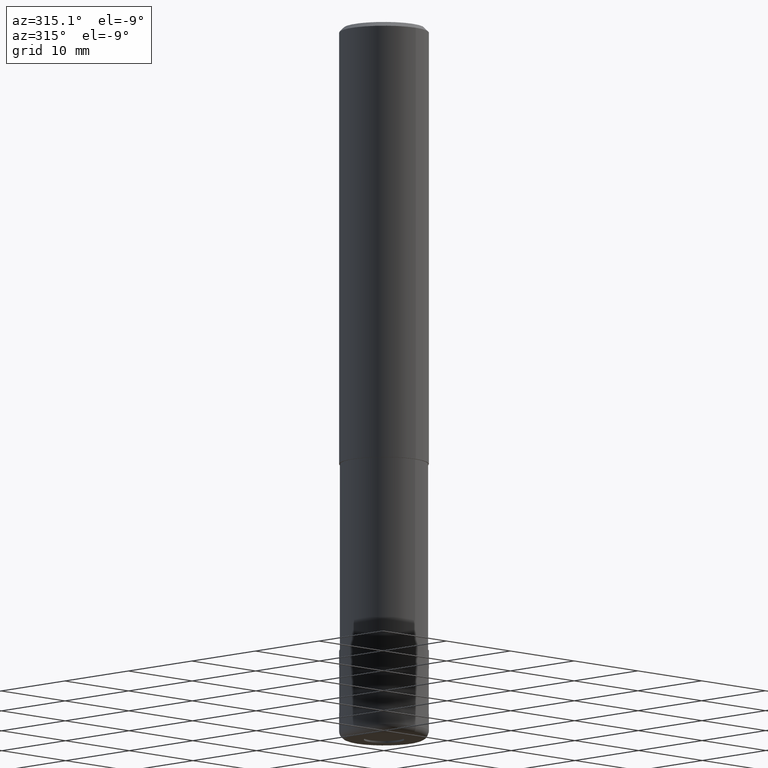
[diagram: clean part render]
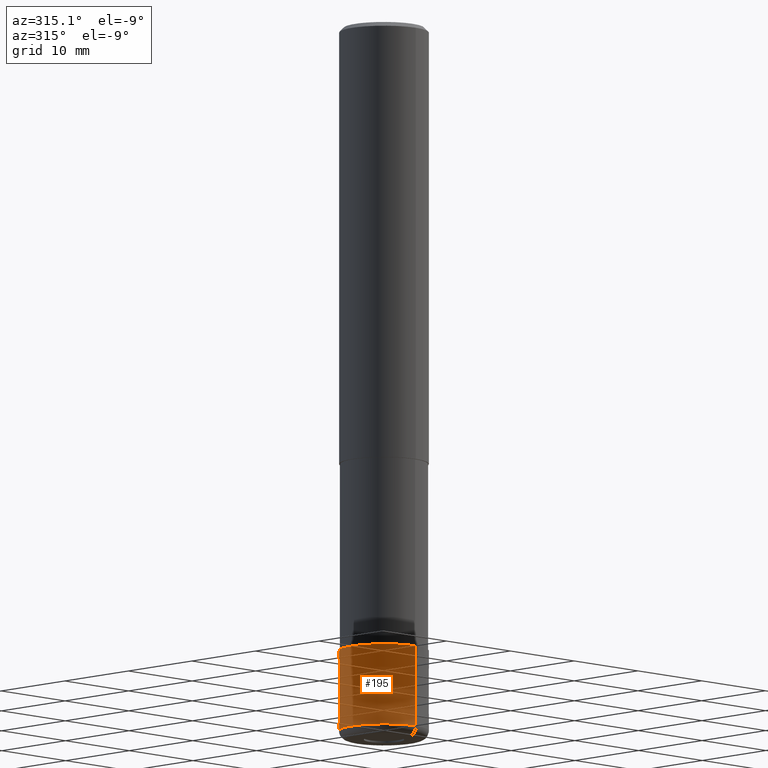
[diagram: same view with one face highlighted and labeled with its STEP entity id]
A machine part, auxiliary view. The second image highlights one B-rep face of the part: STEP entity #195.
In plain terms, the highlighted conical surface has half-angle 0.001 deg.
Its self-contained STEP definition (entity closure, byte-faithful):
#127=VERTEX_POINT('',#316);
#129=EDGE_CURVE('',#161,#127,#318,.T.);
#161=VERTEX_POINT('',#357);
#195=ADVANCED_FACE('',(#397),#398,.T.);
#219=EDGE_CURVE('',#271,#241,#426,.T.);
#241=VERTEX_POINT('',#449);
#245=EDGE_CURVE('',#127,#241,#454,.T.);
#271=VERTEX_POINT('',#481);
#279=EDGE_CURVE('',#271,#161,#489,.T.);
#316=CARTESIAN_POINT('',(0.0,4.9999,-70.0));
#318=CIRCLE('',#524,4.9999);
#357=CARTESIAN_POINT('',(6.1229093084765E-016,-4.9999,-70.0));
#397=FACE_OUTER_BOUND('',#621,.T.);
#398=CONICAL_SURFACE('',#622,4.99995,1.1111111110628E-005);
#426=CIRCLE('',#658,5.0);
#449=CARTESIAN_POINT('',(0.0,5.0,-79.0));
#454=LINE('',#692,#693);
#481=CARTESIAN_POINT('',(6.12303176911189E-016,-5.0,-79.0));
#489=LINE('',#739,#740);
#524=AXIS2_PLACEMENT_3D('',#769,#770,#771);
#621=EDGE_LOOP('',(#888,#889,#890,#891));
#622=AXIS2_PLACEMENT_3D('',#892,#893,#894);
#658=AXIS2_PLACEMENT_3D('',#930,#931,#932);
#692=CARTESIAN_POINT('',(-6.12297053879419E-016,4.99995,-74.5));
#693=VECTOR('',#963,1.0);
#739=CARTESIAN_POINT('',(6.12297053879419E-016,-4.99995,-74.5));
#740=VECTOR('',#986,1.0);
#769=CARTESIAN_POINT('',(0.0,0.0,-70.0));
#770=DIRECTION('',(0.0,0.0,-1.0));
#771=DIRECTION('',(0.0,1.0,0.0));
#888=ORIENTED_EDGE('',*,*,#245,.T.);
#889=ORIENTED_EDGE('',*,*,#219,.F.);
#890=ORIENTED_EDGE('',*,*,#279,.T.);
#891=ORIENTED_EDGE('',*,*,#129,.T.);
#892=CARTESIAN_POINT('',(0.0,0.0,-74.5));
#893=DIRECTION('',(0.0,-0.0,-1.0));
#894=DIRECTION('',(0.0,1.0,0.0));
#930=CARTESIAN_POINT('',(0.0,0.0,-79.0));
#931=DIRECTION('',(0.0,0.0,-1.0));
#932=DIRECTION('',(0.0,1.0,0.0));
#963=DIRECTION('',(-1.36067372638214E-021,1.11111111103993E-005,-0.999999999938272));
#986=DIRECTION('',(-1.36067372638214E-021,1.11111111103993E-005,0.999999999938272));